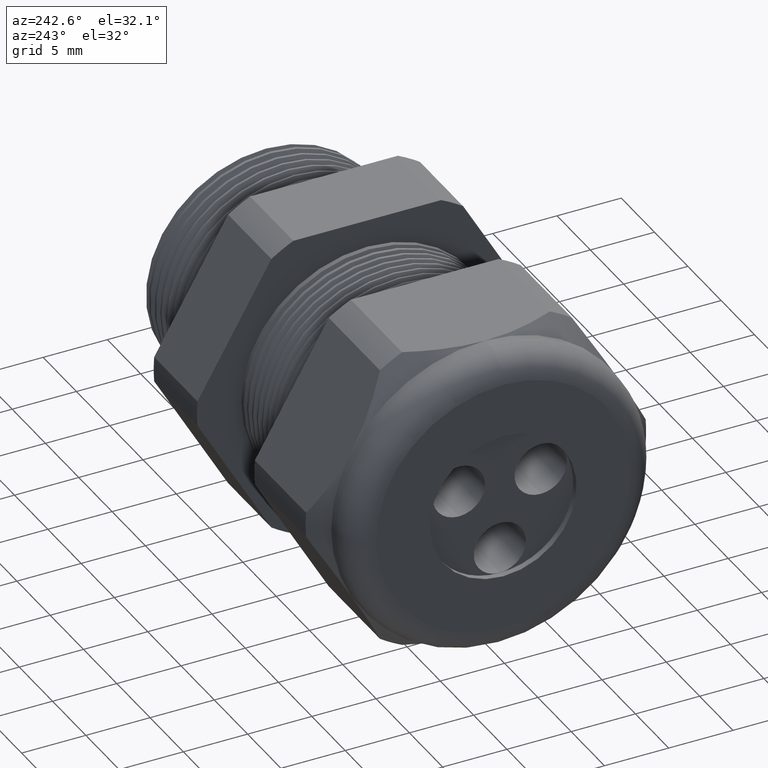
[diagram: clean part render]
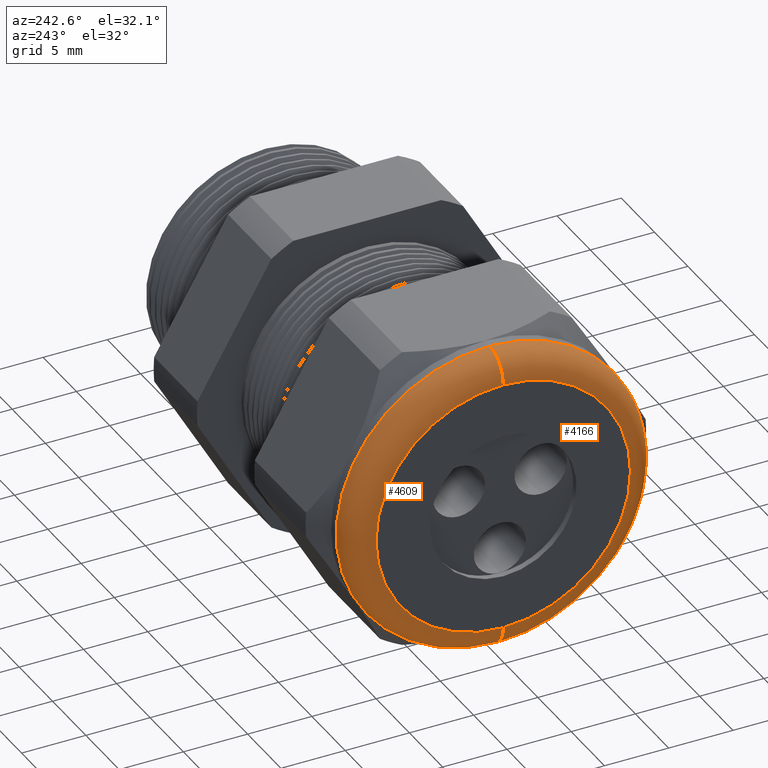
[diagram: same view with one multi-face feature highlighted, each face labeled with its STEP entity id]
A machine part, auxiliary view. The highlighted faces form ONE feature: a constant-radius fillet chain: 2 tangent blend faces with common blend radius 2.032 mm. The faces share edges in the B-rep.
Their STEP definitions:
[1] entity #4609 (Torus):
#2861 = CARTESIAN_POINT ( 'NONE',  ( -1.290000000000000300, 0.0000000000000000000, -0.4699999999999999200 ) ) ;
#2862 = CARTESIAN_POINT ( 'NONE',  ( -1.370000000000000100, 5.265981236333617600E-017, -0.3899999999999999600 ) ) ;
#2863 = CARTESIAN_POINT ( 'NONE',  ( -1.290000000000000300, 5.755839955992558400E-017, 0.4699999999999999200 ) ) ;
#2893 = DIRECTION ( 'NONE',  ( 0.0000000000000000000, 0.0000000000000000000, 1.000000000000000000 ) ) ;
#2894 = DIRECTION ( 'NONE',  ( -1.000000000000000000, 0.0000000000000000000, 0.0000000000000000000 ) ) ;
#2895 = CARTESIAN_POINT ( 'NONE',  ( -1.290000000000000300, 0.0000000000000000000, 0.0000000000000000000 ) ) ;
#2896 = AXIS2_PLACEMENT_3D ( 'NONE', #2895, #2894, #2893 ) ;
#2898 = TOROIDAL_SURFACE ( 'NONE', #2896, 0.3899999999999999600, 0.08000000000000000200 ) ;
#2899 = FACE_OUTER_BOUND ( 'NONE', #4604, .T. ) ;
#2900 = DIRECTION ( 'NONE',  ( 0.0000000000000000000, 0.0000000000000000000, 1.000000000000000000 ) ) ;
#2901 = DIRECTION ( 'NONE',  ( 1.000000000000000000, 0.0000000000000000000, 0.0000000000000000000 ) ) ;
#2902 = CARTESIAN_POINT ( 'NONE',  ( -1.290000000000000300, 0.0000000000000000000, 0.0000000000000000000 ) ) ;
#2903 = AXIS2_PLACEMENT_3D ( 'NONE', #2902, #2901, #2900 ) ;
#2904 = CIRCLE ( 'NONE', #2903, 0.4699999999999999200 ) ;
#2905 = DIRECTION ( 'NONE',  ( 0.0000000000000000000, -1.224646799147353900E-016, 1.000000000000000000 ) ) ;
#2906 = DIRECTION ( 'NONE',  ( 0.0000000000000000000, 1.000000000000000000, 1.224646799147353200E-016 ) ) ;
#2907 = CARTESIAN_POINT ( 'NONE',  ( -1.290000000000000300, 4.776122516674676800E-017, -0.3899999999999999600 ) ) ;
#2908 = AXIS2_PLACEMENT_3D ( 'NONE', #2907, #2906, #2905 ) ;
#2909 = CIRCLE ( 'NONE', #2908, 0.07999999999999996000 ) ;
#2925 = DIRECTION ( 'NONE',  ( 0.0000000000000000000, 0.0000000000000000000, 1.000000000000000000 ) ) ;
#2926 = DIRECTION ( 'NONE',  ( -1.000000000000000000, 0.0000000000000000000, 0.0000000000000000000 ) ) ;
#2927 = CARTESIAN_POINT ( 'NONE',  ( -1.370000000000000100, 0.0000000000000000000, 0.0000000000000000000 ) ) ;
#2928 = AXIS2_PLACEMENT_3D ( 'NONE', #2927, #2926, #2925 ) ;
#2929 = CIRCLE ( 'NONE', #2928, 0.3899999999999999600 ) ;
#2931 = DIRECTION ( 'NONE',  ( 0.0000000000000000000, 0.0000000000000000000, -1.000000000000000000 ) ) ;
#2932 = DIRECTION ( 'NONE',  ( 0.0000000000000000000, -1.000000000000000000, 0.0000000000000000000 ) ) ;
#2933 = CARTESIAN_POINT ( 'NONE',  ( -1.290000000000000300, 0.0000000000000000000, 0.3899999999999999600 ) ) ;
#2934 = AXIS2_PLACEMENT_3D ( 'NONE', #2933, #2932, #2931 ) ;
#2935 = CIRCLE ( 'NONE', #2934, 0.07999999999999996000 ) ;
#2936 = CARTESIAN_POINT ( 'NONE',  ( -1.370000000000000100, 0.0000000000000000000, 0.3899999999999999600 ) ) ;
#4590 = VERTEX_POINT ( 'NONE', #2863 ) ;
#4591 = ORIENTED_EDGE ( 'NONE', *, *, #4603, .T. ) ;
#4592 = VERTEX_POINT ( 'NONE', #2862 ) ;
#4593 = VERTEX_POINT ( 'NONE', #2861 ) ;
#4603 = EDGE_CURVE ( 'NONE', #4593, #4592, #2909, .T. ) ;
#4604 = EDGE_LOOP ( 'NONE', ( #4605, #4591, #4624, #4620 ) ) ;
#4605 = ORIENTED_EDGE ( 'NONE', *, *, #4606, .F. ) ;
#4606 = EDGE_CURVE ( 'NONE', #4593, #4590, #2904, .T. ) ;
#4609 = ADVANCED_FACE ( 'NONE', ( #2899 ), #2898, .T. ) ;
#4620 = ORIENTED_EDGE ( 'NONE', *, *, #4623, .F. ) ;
#4622 = VERTEX_POINT ( 'NONE', #2936 ) ;
#4623 = EDGE_CURVE ( 'NONE', #4590, #4622, #2935, .T. ) ;
#4624 = ORIENTED_EDGE ( 'NONE', *, *, #4625, .F. ) ;
#4625 = EDGE_CURVE ( 'NONE', #4622, #4592, #2929, .T. ) ;
[2] entity #4166 (Torus):
#48 = EDGE_CURVE ( 'NONE', #4592, #4622, #561, .T. ) ;
#557 = DIRECTION ( 'NONE',  ( 0.0000000000000000000, 0.0000000000000000000, 1.000000000000000000 ) ) ;
#558 = DIRECTION ( 'NONE',  ( -1.000000000000000000, 0.0000000000000000000, 0.0000000000000000000 ) ) ;
#559 = CARTESIAN_POINT ( 'NONE',  ( -1.370000000000000100, 0.0000000000000000000, 0.0000000000000000000 ) ) ;
#560 = AXIS2_PLACEMENT_3D ( 'NONE', #559, #558, #557 ) ;
#561 = CIRCLE ( 'NONE', #560, 0.3899999999999999600 ) ;
#2199 = DIRECTION ( 'NONE',  ( 0.0000000000000000000, 0.0000000000000000000, 1.000000000000000000 ) ) ;
#2200 = DIRECTION ( 'NONE',  ( -1.000000000000000000, 0.0000000000000000000, 0.0000000000000000000 ) ) ;
#2201 = AXIS2_PLACEMENT_3D ( 'NONE', #2207, #2200, #2199 ) ;
#2202 = TOROIDAL_SURFACE ( 'NONE', #2201, 0.3899999999999999600, 0.08000000000000000200 ) ;
#2203 = FACE_OUTER_BOUND ( 'NONE', #4167, .T. ) ;
#2207 = CARTESIAN_POINT ( 'NONE',  ( -1.290000000000000300, 0.0000000000000000000, 0.0000000000000000000 ) ) ;
#2606 = CARTESIAN_POINT ( 'NONE',  ( -1.290000000000000300, 0.0000000000000000000, 0.0000000000000000000 ) ) ;
#2662 = DIRECTION ( 'NONE',  ( 0.0000000000000000000, 0.0000000000000000000, 1.000000000000000000 ) ) ;
#2663 = DIRECTION ( 'NONE',  ( 1.000000000000000000, 0.0000000000000000000, 0.0000000000000000000 ) ) ;
#2664 = AXIS2_PLACEMENT_3D ( 'NONE', #2606, #2663, #2662 ) ;
#2665 = CIRCLE ( 'NONE', #2664, 0.4699999999999999200 ) ;
#2861 = CARTESIAN_POINT ( 'NONE',  ( -1.290000000000000300, 0.0000000000000000000, -0.4699999999999999200 ) ) ;
#2862 = CARTESIAN_POINT ( 'NONE',  ( -1.370000000000000100, 5.265981236333617600E-017, -0.3899999999999999600 ) ) ;
#2863 = CARTESIAN_POINT ( 'NONE',  ( -1.290000000000000300, 5.755839955992558400E-017, 0.4699999999999999200 ) ) ;
#2905 = DIRECTION ( 'NONE',  ( 0.0000000000000000000, -1.224646799147353900E-016, 1.000000000000000000 ) ) ;
#2906 = DIRECTION ( 'NONE',  ( 0.0000000000000000000, 1.000000000000000000, 1.224646799147353200E-016 ) ) ;
#2907 = CARTESIAN_POINT ( 'NONE',  ( -1.290000000000000300, 4.776122516674676800E-017, -0.3899999999999999600 ) ) ;
#2908 = AXIS2_PLACEMENT_3D ( 'NONE', #2907, #2906, #2905 ) ;
#2909 = CIRCLE ( 'NONE', #2908, 0.07999999999999996000 ) ;
#2931 = DIRECTION ( 'NONE',  ( 0.0000000000000000000, 0.0000000000000000000, -1.000000000000000000 ) ) ;
#2932 = DIRECTION ( 'NONE',  ( 0.0000000000000000000, -1.000000000000000000, 0.0000000000000000000 ) ) ;
#2933 = CARTESIAN_POINT ( 'NONE',  ( -1.290000000000000300, 0.0000000000000000000, 0.3899999999999999600 ) ) ;
#2934 = AXIS2_PLACEMENT_3D ( 'NONE', #2933, #2932, #2931 ) ;
#2935 = CIRCLE ( 'NONE', #2934, 0.07999999999999996000 ) ;
#2936 = CARTESIAN_POINT ( 'NONE',  ( -1.370000000000000100, 0.0000000000000000000, 0.3899999999999999600 ) ) ;
#4166 = ADVANCED_FACE ( 'NONE', ( #2203 ), #2202, .T. ) ;
#4167 = EDGE_LOOP ( 'NONE', ( #4168, #4169, #4170, #4171 ) ) ;
#4168 = ORIENTED_EDGE ( 'NONE', *, *, #4603, .F. ) ;
#4169 = ORIENTED_EDGE ( 'NONE', *, *, #4446, .F. ) ;
#4170 = ORIENTED_EDGE ( 'NONE', *, *, #4623, .T. ) ;
#4171 = ORIENTED_EDGE ( 'NONE', *, *, #48, .F. ) ;
#4446 = EDGE_CURVE ( 'NONE', #4590, #4593, #2665, .T. ) ;
#4590 = VERTEX_POINT ( 'NONE', #2863 ) ;
#4592 = VERTEX_POINT ( 'NONE', #2862 ) ;
#4593 = VERTEX_POINT ( 'NONE', #2861 ) ;
#4603 = EDGE_CURVE ( 'NONE', #4593, #4592, #2909, .T. ) ;
#4622 = VERTEX_POINT ( 'NONE', #2936 ) ;
#4623 = EDGE_CURVE ( 'NONE', #4590, #4622, #2935, .T. ) ;